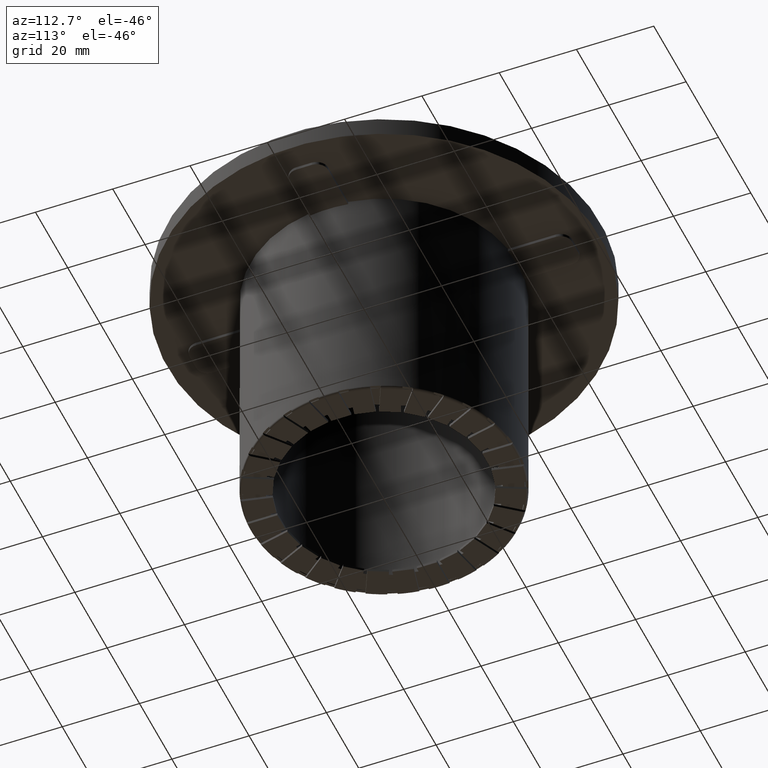
[diagram: clean part render]
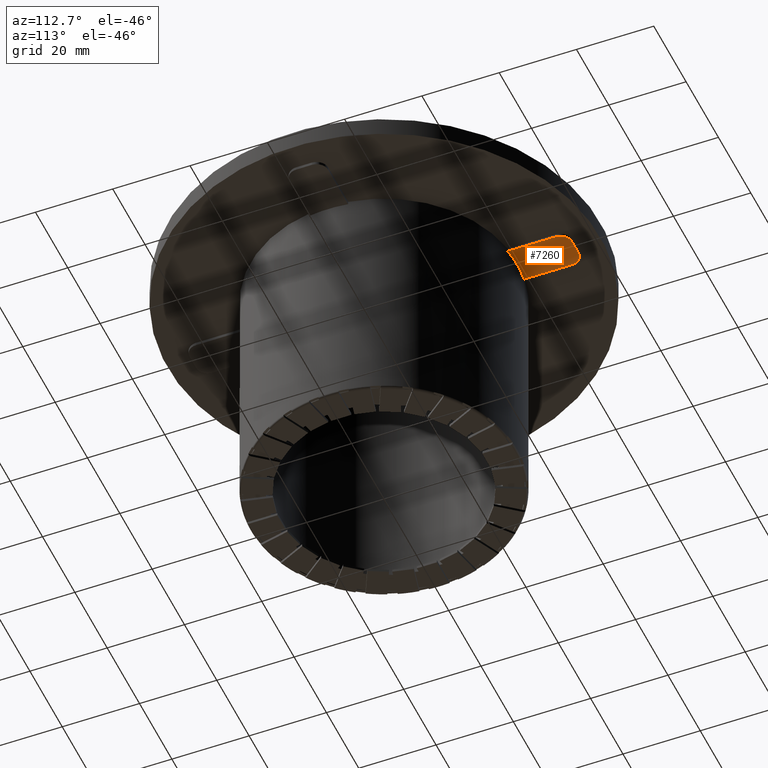
[diagram: same view with one face highlighted and labeled with its STEP entity id]
A machine part, auxiliary view. The second image highlights one B-rep face of the part: STEP entity #7260.
In plain terms, the highlighted planar face has unit normal (0, 0, 1).
Its self-contained STEP definition (entity closure, byte-faithful):
#1368=CARTESIAN_POINT('',(-5.000000000000001,34.13575837739657,63.499999999999979));
#1369=VERTEX_POINT('',#1368);
#1376=CARTESIAN_POINT('',(4.999999999999998,34.13575837739657,63.499999999999979));
#1377=VERTEX_POINT('',#1376);
#1378=CARTESIAN_POINT('',(0.0,0.0,63.499999999999979));
#1379=DIRECTION('',(0.0,0.0,-1.0));
#1380=DIRECTION('',(-1.0,0.0,0.0));
#1381=AXIS2_PLACEMENT_3D('',#1378,#1379,#1380);
#1382=CIRCLE('',#1381,34.5);
#1383=EDGE_CURVE('',#1369,#1377,#1382,.T.);
#7102=CARTESIAN_POINT('',(4.999999999999998,46.5,63.499999999999979));
#7103=VERTEX_POINT('',#7102);
#7104=CARTESIAN_POINT('',(1.999999999999997,49.500000000000014,63.499999999999979));
#7105=VERTEX_POINT('',#7104);
#7106=CARTESIAN_POINT('',(1.999999999999996,46.5,63.5));
#7107=DIRECTION('',(0.0,0.0,1.0));
#7108=DIRECTION('',(1.0,0.0,0.0));
#7109=AXIS2_PLACEMENT_3D('',#7106,#7107,#7108);
#7110=CIRCLE('',#7109,2.999999999999991);
#7111=EDGE_CURVE('',#7103,#7105,#7110,.T.);
#7144=CARTESIAN_POINT('',(-2.000000000000003,49.500000000000014,63.499999999999979));
#7145=VERTEX_POINT('',#7144);
#7146=CARTESIAN_POINT('',(1.999999999999997,49.500000000000014,63.5));
#7147=DIRECTION('',(-1.0,0.0,0.0));
#7148=VECTOR('',#7147,4.0);
#7149=LINE('',#7146,#7148);
#7150=EDGE_CURVE('',#7105,#7145,#7149,.T.);
#7175=CARTESIAN_POINT('',(-5.000000000000004,46.5,63.499999999999979));
#7176=VERTEX_POINT('',#7175);
#7177=CARTESIAN_POINT('',(-2.000000000000003,46.5,63.5));
#7178=DIRECTION('',(0.0,0.0,1.0));
#7179=DIRECTION('',(0.0,1.0,0.0));
#7180=AXIS2_PLACEMENT_3D('',#7177,#7178,#7179);
#7181=CIRCLE('',#7180,3.000000000000002);
#7182=EDGE_CURVE('',#7145,#7176,#7181,.T.);
#7208=CARTESIAN_POINT('',(-5.000000000000004,46.5,63.5));
#7209=DIRECTION('',(0.0,-1.0,0.0));
#7210=VECTOR('',#7209,12.36424162260343);
#7211=LINE('',#7208,#7210);
#7212=EDGE_CURVE('',#7176,#1369,#7211,.T.);
#7230=CARTESIAN_POINT('',(4.999999999999998,34.13575837739657,63.5));
#7231=DIRECTION('',(0.0,1.0,0.0));
#7232=VECTOR('',#7231,12.36424162260343);
#7233=LINE('',#7230,#7232);
#7234=EDGE_CURVE('',#1377,#7103,#7233,.T.);
#7247=CARTESIAN_POINT('',(-3.885781E-015,41.412775178141032,63.499999999999979));
#7248=DIRECTION('',(0.0,0.0,1.0));
#7249=DIRECTION('',(1.0,0.0,0.0));
#7250=AXIS2_PLACEMENT_3D('',#7247,#7248,#7249);
#7251=PLANE('',#7250);
#7252=ORIENTED_EDGE('',*,*,#7111,.F.);
#7253=ORIENTED_EDGE('',*,*,#7234,.F.);
#7254=ORIENTED_EDGE('',*,*,#1383,.F.);
#7255=ORIENTED_EDGE('',*,*,#7212,.F.);
#7256=ORIENTED_EDGE('',*,*,#7182,.F.);
#7257=ORIENTED_EDGE('',*,*,#7150,.F.);
#7258=EDGE_LOOP('',(#7252,#7253,#7254,#7255,#7256,#7257));
#7259=FACE_OUTER_BOUND('',#7258,.T.);
#7260=ADVANCED_FACE('',(#7259),#7251,.F.);